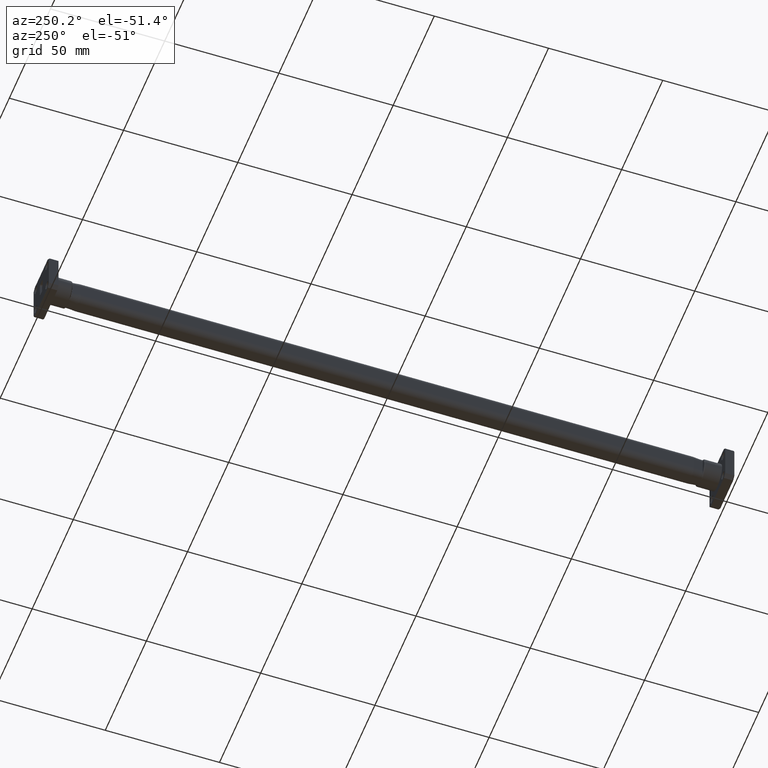
[diagram: clean part render]
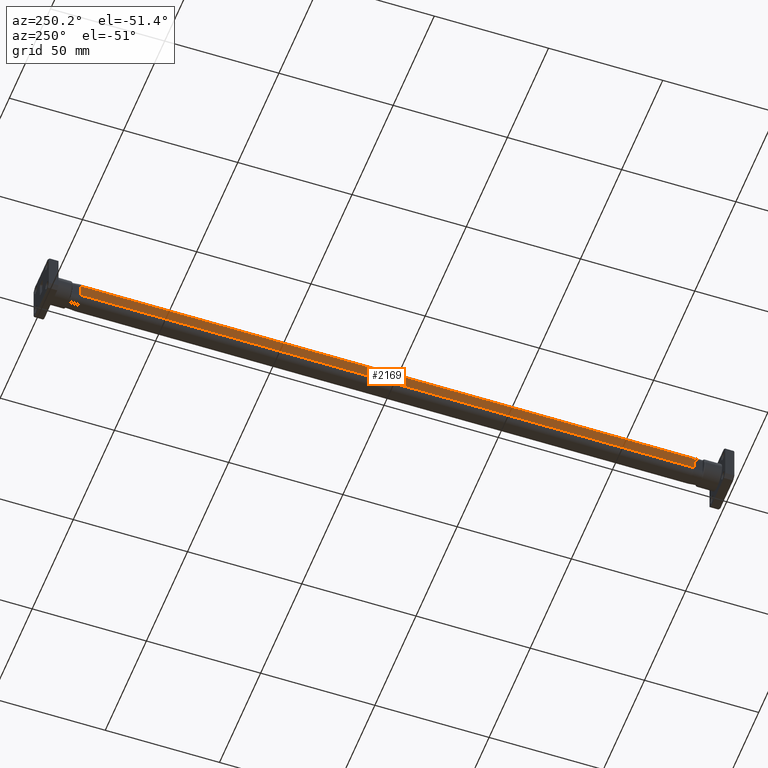
[diagram: same view with one face highlighted and labeled with its STEP entity id]
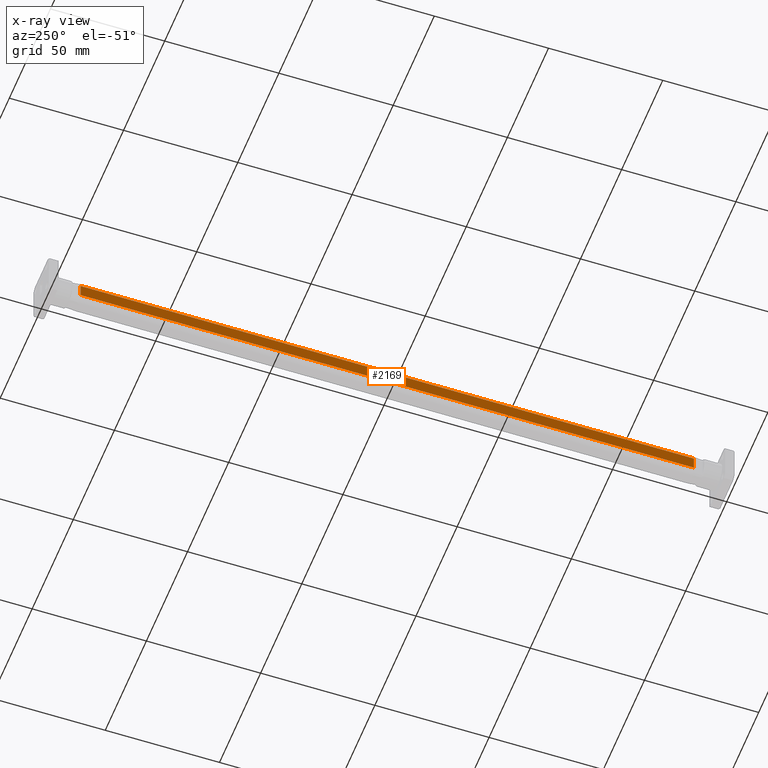
[diagram: x-ray of the same camera — body ghosted, the highlighted face saturated]
A machine part, auxiliary view. The second image highlights one B-rep face of the part: STEP entity #2169.
The next image is the same camera in x-ray: the body ghosted, the highlighted face saturated — about 0% of this face is hidden behind the body in this view.
In plain terms, the highlighted planar face has unit normal (1, 0, -0).
Its self-contained STEP definition (entity closure, byte-faithful):
#312 = LINE ( 'NONE', #507, #1934 ) ;
#507 = CARTESIAN_POINT ( 'NONE',  ( -0.1574803149606304700, 11.18897637795275700, -0.1181102362204726900 ) ) ;
#558 = CARTESIAN_POINT ( 'NONE',  ( -0.1574803149606304700, 1.322834645669291700, -0.1181102362204726900 ) ) ;
#657 = DIRECTION ( 'NONE',  ( -3.441691376337985700E-015, 0.0000000000000000000, -1.000000000000000000 ) ) ;
#671 = EDGE_CURVE ( 'Defeatured_0_2+Defeatured_0_6+Defeatured_0_4+Defeatured_0_7', #3196, #2317, #312, .T. ) ;
#767 = CARTESIAN_POINT ( 'NONE',  ( -0.1574803149605026600, 0.6220472440934171600, -0.1181102362204726900 ) ) ;
#885 = DIRECTION ( 'NONE',  ( 0.0000000000000000000, -1.000000000000000000, 0.0000000000000000000 ) ) ;
#963 = VERTEX_POINT ( 'NONE', #2818 ) ;
#977 = VECTOR ( 'NONE', #2725, 39.37007874015748100 ) ;
#1400 = CARTESIAN_POINT ( 'NONE',  ( -0.1574803149606297000, 1.322834645669291700, 0.1181102362204725600 ) ) ;
#1466 = ORIENTED_EDGE ( 'NONE', *, *, #1669, .F. ) ;
#1480 = LINE ( 'NONE', #3609, #1582 ) ;
#1582 = VECTOR ( 'NONE', #657, 39.37007874015748100 ) ;
#1608 = CARTESIAN_POINT ( 'NONE',  ( -0.1574803149605018800, 11.18897637795377900, 0.1181102362204725500 ) ) ;
#1669 = EDGE_CURVE ( 'Defeatured_0_11+Defeatured_0_6+Defeatured_0_8+Defeatured_0_4', #1772, #3196, #3312, .T. ) ;
#1755 = ORIENTED_EDGE ( 'NONE', *, *, #671, .F. ) ;
#1772 = VERTEX_POINT ( 'NONE', #767 ) ;
#1860 = ORIENTED_EDGE ( 'NONE', *, *, #2037, .F. ) ;
#1890 = DIRECTION ( 'NONE',  ( 3.441691376337985700E-015, -0.0000000000000000000, 1.000000000000000000 ) ) ;
#1934 = VECTOR ( 'NONE', #1890, 39.37007874015748100 ) ;
#2023 = AXIS2_PLACEMENT_3D ( 'NONE', #558, #2863, #885 ) ;
#2037 = EDGE_CURVE ( 'Defeatured_0_14+Defeatured_0_6+Defeatured_0_7+Defeatured_0_9', #2317, #963, #2746, .T. ) ;
#2141 = CARTESIAN_POINT ( 'NONE',  ( -0.1574803149605026600, 11.18897637795377900, -0.1181102362204726900 ) ) ;
#2169 = ADVANCED_FACE ( 'Defeatured_0_6', ( #3865 ), #4175, .F. ) ;
#2317 = VERTEX_POINT ( 'NONE', #1608 ) ;
#2324 = VECTOR ( 'NONE', #2694, 39.37007874015748100 ) ;
#2356 = EDGE_CURVE ( 'Defeatured_0_3+Defeatured_0_6+Defeatured_0_9+Defeatured_0_8', #963, #1772, #1480, .T. ) ;
#2527 = ORIENTED_EDGE ( 'NONE', *, *, #2356, .F. ) ;
#2694 = DIRECTION ( 'NONE',  ( -0.0000000000000000000, 1.000000000000000000, -0.0000000000000000000 ) ) ;
#2718 = EDGE_LOOP ( 'NONE', ( #1755, #1466, #2527, #1860 ) ) ;
#2725 = DIRECTION ( 'NONE',  ( 0.0000000000000000000, -1.000000000000000000, 0.0000000000000000000 ) ) ;
#2746 = LINE ( 'NONE', #1400, #977 ) ;
#2818 = CARTESIAN_POINT ( 'NONE',  ( -0.1574803149605018800, 0.6220472440934173800, 0.1181102362204725500 ) ) ;
#2863 = DIRECTION ( 'NONE',  ( 1.000000000000000000, 0.0000000000000000000, -3.441691376337985700E-015 ) ) ;
#3196 = VERTEX_POINT ( 'NONE', #2141 ) ;
#3312 = LINE ( 'NONE', #3664, #2324 ) ;
#3609 = CARTESIAN_POINT ( 'NONE',  ( -0.1574803149606304700, 0.6220472440944879700, -0.1181102362204726900 ) ) ;
#3664 = CARTESIAN_POINT ( 'NONE',  ( -0.1574803149606304700, 1.322834645669291700, -0.1181102362204726800 ) ) ;
#3865 = FACE_OUTER_BOUND ( 'NONE', #2718, .T. ) ;
#4175 = PLANE ( 'NONE',  #2023 ) ;